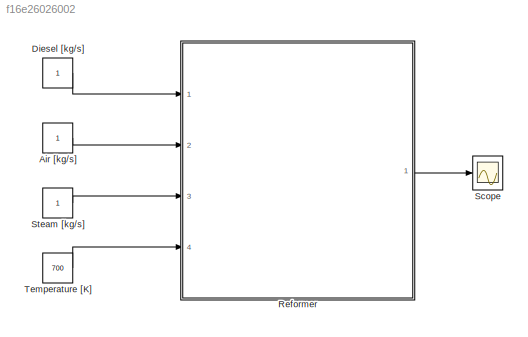
MODEL slx_f16e26026002
KIND model
CONFIG AbsTol = auto
CONFIG EnableMultiTasking = off
CONFIG FixedStep = auto
CONFIG MaxStep = auto
CONFIG MinStep = auto
CONFIG RelTol = 1e-3
CONFIG SampleTimeConstraint = Unconstrained
CONFIG SolverName = VariableStepAuto
CONFIG StartTime = 0.0
CONFIG StopTime = 3
BLOCK [Constant] Air [kg//s]
BLOCK [Constant] Diesel [kg//s]
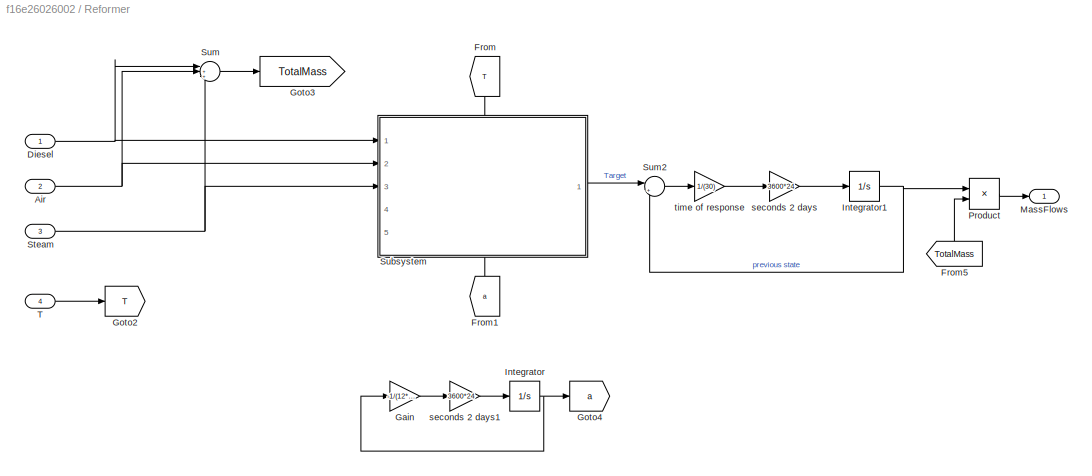
BLOCK [SubSystem] Reformer 
  Ports = [4, 1]
  RequestExecContextInheritance = off
BLOCK [Inport] Reformer /Air
  Port = 2
BLOCK [Inport] Reformer /Diesel
BLOCK [From] Reformer /From
  GotoTag = T
  NameLocation = left
BLOCK [From] Reformer /From1
  GotoTag = a
  NameLocation = right
BLOCK [From] Reformer /From5
  GotoTag = TotalMass
  NameLocation = right
BLOCK [Gain] Reformer /Gain
  Gain = -1/(12*30*24*3600)
BLOCK [Goto] Reformer /Goto2
  GotoTag = T
BLOCK [Goto] Reformer /Goto3
  GotoTag = TotalMass
BLOCK [Goto] Reformer /Goto4
  GotoTag = a
BLOCK [Integrator] Reformer /Integrator
  InitialCondition = 1
  Ports = [1, 1]
BLOCK [Integrator] Reformer /Integrator1
  Ports = [1, 1]
BLOCK [Outport] Reformer /MassFlows
BLOCK [Product] Reformer /Product
  Ports = [2, 1]
BLOCK [Inport] Reformer /Steam
  Port = 3
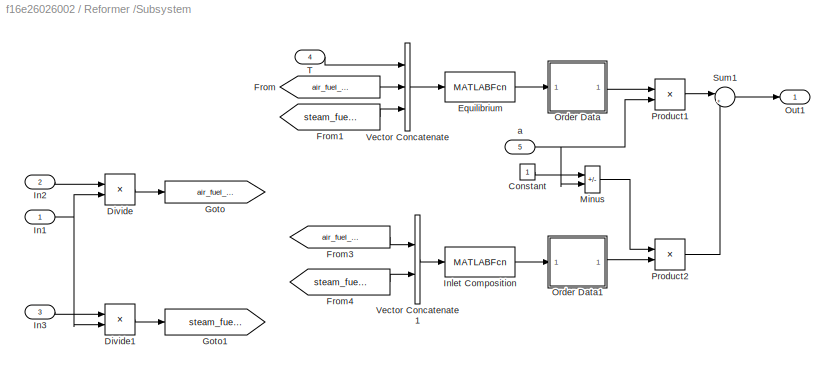
BLOCK [SubSystem] Reformer /Subsystem
  PortSchema = {"entries":[{"content":{"sides":[{"content":{"connectorIds":["In1","In2","In3"]},"type":"ConnectorPlacement.EquallySpacedRectSide","uuid":"0dada652-6957-4c3e-8e48-73ee360a3bab"},{"content":{"connectorIds":["Out1"],"side":"RIGHT"},"type":"ConnectorPlacement.EquallySpacedRectSide","uuid":"81208621-951c-43f9-b655-3502a16ce57a"},{"content":{"connectorIds":["In4"],"side":"TOP"},"type":"ConnectorPlaceme...<+406ch>
  Ports = [5, 1]
  RequestExecContextInheritance = off
BLOCK [Constant] Reformer /Subsystem/Constant
BLOCK [Product] Reformer /Subsystem/Divide
  Inputs = */
  Ports = [2, 1]
BLOCK [Product] Reformer /Subsystem/Divide1
  Inputs = */
  Ports = [2, 1]
BLOCK [MATLABFcn] Reformer /Subsystem/Equilibrium
  MATLABFcn = forward_reformer_net
  Output1D = off
  OutputDimensions = 8
  OutputSignalType = real
  Ports = [1, 1]
BLOCK [From] Reformer /Subsystem/From
  GotoTag = air_fuel_ratio
BLOCK [From] Reformer /Subsystem/From1
  GotoTag = steam_fuel_ratio
BLOCK [From] Reformer /Subsystem/From3
  GotoTag = air_fuel_ratio
BLOCK [From] Reformer /Subsystem/From4
  GotoTag = steam_fuel_ratio
BLOCK [Goto] Reformer /Subsystem/Goto
  GotoTag = air_fuel_ratio
BLOCK [Goto] Reformer /Subsystem/Goto1
  GotoTag = steam_fuel_ratio
BLOCK [Inport] Reformer /Subsystem/In1
BLOCK [Inport] Reformer /Subsystem/In2
  Port = 2
BLOCK [Inport] Reformer /Subsystem/In3
  Port = 3
BLOCK [MATLABFcn] Reformer /Subsystem/Inlet Composition
  MATLABFcn = inlet_reformer_net
  Output1D = off
  OutputDimensions = 6
  OutputSignalType = real
  Ports = [1, 1]
BLOCK [Sum] Reformer /Subsystem/Minus
  IconShape = rectangular
  Inputs = +-
  Ports = [2, 1]
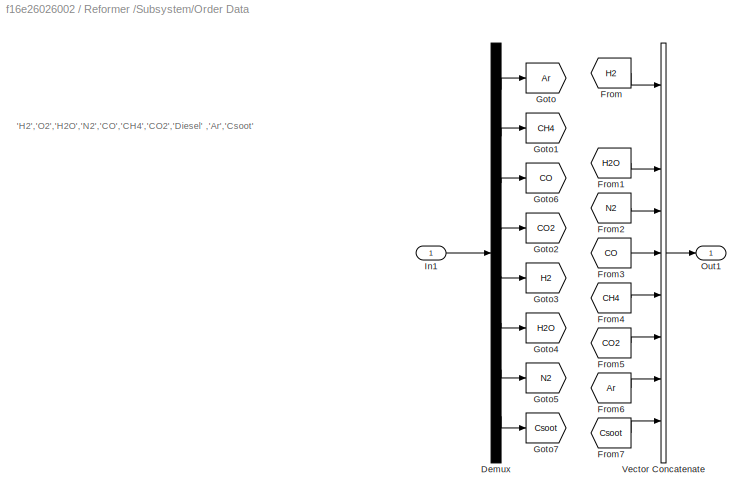
BLOCK [SubSystem] Reformer /Subsystem/Order Data
  Ports = [1, 1]
  RequestExecContextInheritance = off
BLOCK [Demux] Reformer /Subsystem/Order Data/Demux
  Outputs = 8
  Ports = [1, 8]
BLOCK [From] Reformer /Subsystem/Order Data/From
  GotoTag = H2
BLOCK [From] Reformer /Subsystem/Order Data/From1
  GotoTag = H2O
BLOCK [From] Reformer /Subsystem/Order Data/From2
  GotoTag = N2
BLOCK [From] Reformer /Subsystem/Order Data/From3
  GotoTag = CO
BLOCK [From] Reformer /Subsystem/Order Data/From4
  GotoTag = CH4
BLOCK [From] Reformer /Subsystem/Order Data/From5
  GotoTag = CO2
BLOCK [From] Reformer /Subsystem/Order Data/From6
  GotoTag = Ar
BLOCK [From] Reformer /Subsystem/Order Data/From7
  GotoTag = Csoot
BLOCK [Goto] Reformer /Subsystem/Order Data/Goto
  GotoTag = Ar
BLOCK [Goto] Reformer /Subsystem/Order Data/Goto1
  GotoTag = CH4
BLOCK [Goto] Reformer /Subsystem/Order Data/Goto2
  GotoTag = CO2
BLOCK [Goto] Reformer /Subsystem/Order Data/Goto3
  GotoTag = H2
BLOCK [Goto] Reformer /Subsystem/Order Data/Goto4
  GotoTag = H2O
BLOCK [Goto] Reformer /Subsystem/Order Data/Goto5
  GotoTag = N2
BLOCK [Goto] Reformer /Subsystem/Order Data/Goto6
  GotoTag = CO
BLOCK [Goto] Reformer /Subsystem/Order Data/Goto7
  GotoTag = Csoot
BLOCK [Inport] Reformer /Subsystem/Order Data/In1
BLOCK [Outport] Reformer /Subsystem/Order Data/Out1
BLOCK [Concatenate] Reformer /Subsystem/Order Data/Vector Concatenate
  NumInputs = 9
  Ports = [9, 1]
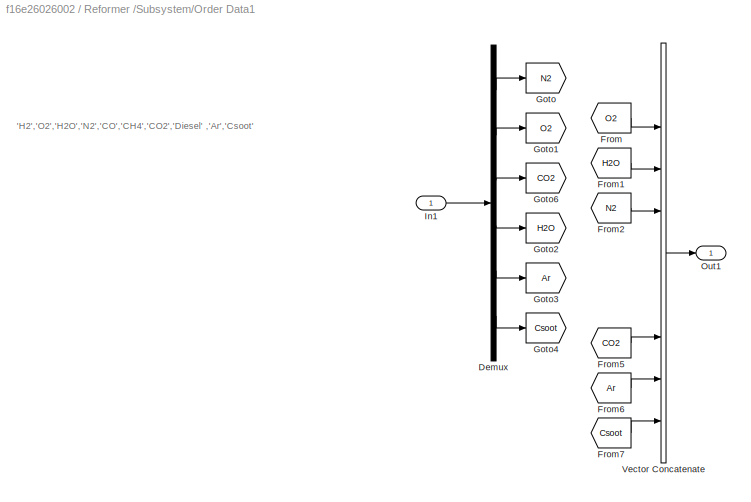
BLOCK [SubSystem] Reformer /Subsystem/Order Data1
  Ports = [1, 1]
  RequestExecContextInheritance = off
BLOCK [Demux] Reformer /Subsystem/Order Data1/Demux
  Outputs = 6
  Ports = [1, 6]
BLOCK [From] Reformer /Subsystem/Order Data1/From
  GotoTag = O2
BLOCK [From] Reformer /Subsystem/Order Data1/From1
  GotoTag = H2O
BLOCK [From] Reformer /Subsystem/Order Data1/From2
  GotoTag = N2
BLOCK [From] Reformer /Subsystem/Order Data1/From5
  GotoTag = CO2
BLOCK [From] Reformer /Subsystem/Order Data1/From6
  GotoTag = Ar
BLOCK [From] Reformer /Subsystem/Order Data1/From7
  GotoTag = Csoot
BLOCK [Goto] Reformer /Subsystem/Order Data1/Goto
  GotoTag = N2
BLOCK [Goto] Reformer /Subsystem/Order Data1/Goto1
  GotoTag = O2
BLOCK [Goto] Reformer /Subsystem/Order Data1/Goto2
  GotoTag = H2O
BLOCK [Goto] Reformer /Subsystem/Order Data1/Goto3
  GotoTag = Ar
BLOCK [Goto] Reformer /Subsystem/Order Data1/Goto4
  GotoTag = Csoot
BLOCK [Goto] Reformer /Subsystem/Order Data1/Goto6
  GotoTag = CO2
BLOCK [Inport] Reformer /Subsystem/Order Data1/In1
BLOCK [Outport] Reformer /Subsystem/Order Data1/Out1
BLOCK [Concatenate] Reformer /Subsystem/Order Data1/Vector Concatenate
  NumInputs = 9
  Ports = [9, 1]
BLOCK [Outport] Reformer /Subsystem/Out1
BLOCK [Product] Reformer /Subsystem/Product1
  Ports = [2, 1]
BLOCK [Product] Reformer /Subsystem/Product2
  Ports = [2, 1]
BLOCK [Sum] Reformer /Subsystem/Sum1
  Inputs = |++
  Ports = [2, 1]
BLOCK [Inport] Reformer /Subsystem/T
  Port = 4
BLOCK [Concatenate] Reformer /Subsystem/Vector Concatenate
  NumInputs = 3
  Ports = [3, 1]
BLOCK [Concatenate] Reformer /Subsystem/Vector Concatenate1
  Ports = [2, 1]
BLOCK [Inport] Reformer /Subsystem/a
  Port = 5
BLOCK [Sum] Reformer /Sum
  Inputs = |+++
  Ports = [3, 1]
BLOCK [Sum] Reformer /Sum2
  Inputs = |+-
  Ports = [2, 1]
BLOCK [Inport] Reformer /T
  Port = 4
BLOCK [Gain] Reformer /seconds 2 days
  Gain = 3600*24
BLOCK [Gain] Reformer /seconds 2 days1
  Gain = 3600*24
BLOCK [Gain] Reformer /time of response
  Gain = 1/(30)
BLOCK [Scope] Scope
  Floating = off
  NumInputPorts = 1
  Ports = [1]
  ScopeSpecificationString = Simulink.scopes.TimeScopeBlockCfg('CurrentConfiguration', extmgr.ConfigurationSet(extmgr.Configuration('Core','General UI',true),extmgr.Configuration('Core','Source UI',true),extmgr.Configuration('Sources','WiredSimulink',true),extmgr.Configuration('Visuals','Time Domain',true,'SerializedDisplays',{struct('MinYLimReal','-0.14638','MaxYLimReal','1.31743','YLabelReal','','MinYLimMag','0.00000','MaxY...<+1673ch>
BLOCK [Constant] Steam [kg//s]
BLOCK [Constant] Temperature [K]
  Value = 700
ANNOTATION Reformer /Subsystem/Order Data: 'H2' , 'O2' , 'H2O' , 'N2' , 'CO' , 'CH4' , 'CO2' , 'Diesel' ,'Ar','Csoot'
ANNOTATION Reformer /Subsystem/Order Data1: 'H2' , 'O2' , 'H2O' , 'N2' , 'CO' , 'CH4' , 'CO2' , 'Diesel' ,'Ar','Csoot'
LINE Air [kg//s]:1 -> Reformer :2
LINE Diesel [kg//s]:1 -> Reformer :1
NET Reformer /Air:1 -> Reformer /Subsystem:2, Reformer /Sum:2
NET Reformer /Diesel:1 -> Reformer /Subsystem:1, Reformer /Sum:1
LINE Reformer /From1:1 -> Reformer /Subsystem:5
LINE Reformer /From5:1 -> Reformer /Product:2
LINE Reformer /From:1 -> Reformer /Subsystem:4
LINE Reformer /Gain:1 -> Reformer /seconds 2 days1:1
NET Reformer /Integrator1:1 -> Reformer /Product:1, Reformer /Sum2:2
NET Reformer /Integrator:1 -> Reformer /Gain:1, Reformer /Goto4:1
LINE Reformer /Product:1 -> Reformer /MassFlows:1
NET Reformer /Steam:1 -> Reformer /Subsystem:3, Reformer /Sum:3
LINE Reformer /Subsystem/Constant:1 -> Reformer /Subsystem/Minus:1
LINE Reformer /Subsystem/Divide1:1 -> Reformer /Subsystem/Goto1:1
LINE Reformer /Subsystem/Divide:1 -> Reformer /Subsystem/Goto:1
LINE Reformer /Subsystem/Equilibrium:1 -> Reformer /Subsystem/Order Data:1
LINE Reformer /Subsystem/From1:1 -> Reformer /Subsystem/Vector Concatenate:3
LINE Reformer /Subsystem/From3:1 -> Reformer /Subsystem/Vector Concatenate1:1
LINE Reformer /Subsystem/From4:1 -> Reformer /Subsystem/Vector Concatenate1:2
LINE Reformer /Subsystem/From:1 -> Reformer /Subsystem/Vector Concatenate:2
NET Reformer /Subsystem/In1:1 -> Reformer /Subsystem/Divide1:2, Reformer /Subsystem/Divide:2
LINE Reformer /Subsystem/In2:1 -> Reformer /Subsystem/Divide:1
LINE Reformer /Subsystem/In3:1 -> Reformer /Subsystem/Divide1:1
LINE Reformer /Subsystem/Inlet Composition:1 -> Reformer /Subsystem/Order Data1:1
LINE Reformer /Subsystem/Minus:1 -> Reformer /Subsystem/Product2:1
LINE Reformer /Subsystem/Order Data/Demux:1 -> Reformer /Subsystem/Order Data/Goto:1
LINE Reformer /Subsystem/Order Data/Demux:2 -> Reformer /Subsystem/Order Data/Goto1:1
LINE Reformer /Subsystem/Order Data/Demux:3 -> Reformer /Subsystem/Order Data/Goto6:1
LINE Reformer /Subsystem/Order Data/Demux:4 -> Reformer /Subsystem/Order Data/Goto2:1
LINE Reformer /Subsystem/Order Data/Demux:5 -> Reformer /Subsystem/Order Data/Goto3:1
LINE Reformer /Subsystem/Order Data/Demux:6 -> Reformer /Subsystem/Order Data/Goto4:1
LINE Reformer /Subsystem/Order Data/Demux:7 -> Reformer /Subsystem/Order Data/Goto5:1
LINE Reformer /Subsystem/Order Data/Demux:8 -> Reformer /Subsystem/Order Data/Goto7:1
LINE Reformer /Subsystem/Order Data/From1:1 -> Reformer /Subsystem/Order Data/Vector Concatenate:3
LINE Reformer /Subsystem/Order Data/From2:1 -> Reformer /Subsystem/Order Data/Vector Concatenate:4
LINE Reformer /Subsystem/Order Data/From3:1 -> Reformer /Subsystem/Order Data/Vector Concatenate:5
LINE Reformer /Subsystem/Order Data/From4:1 -> Reformer /Subsystem/Order Data/Vector Concatenate:6
LINE Reformer /Subsystem/Order Data/From5:1 -> Reformer /Subsystem/Order Data/Vector Concatenate:7
LINE Reformer /Subsystem/Order Data/From6:1 -> Reformer /Subsystem/Order Data/Vector Concatenate:8
LINE Reformer /Subsystem/Order Data/From7:1 -> Reformer /Subsystem/Order Data/Vector Concatenate:9
LINE Reformer /Subsystem/Order Data/From:1 -> Reformer /Subsystem/Order Data/Vector Concatenate:1
LINE Reformer /Subsystem/Order Data/In1:1 -> Reformer /Subsystem/Order Data/Demux:1
LINE Reformer /Subsystem/Order Data/Vector Concatenate:1 -> Reformer /Subsystem/Order Data/Out1:1
LINE Reformer /Subsystem/Order Data1/Demux:1 -> Reformer /Subsystem/Order Data1/Goto:1
LINE Reformer /Subsystem/Order Data1/Demux:2 -> Reformer /Subsystem/Order Data1/Goto1:1
LINE Reformer /Subsystem/Order Data1/Demux:3 -> Reformer /Subsystem/Order Data1/Goto6:1
LINE Reformer /Subsystem/Order Data1/Demux:4 -> Reformer /Subsystem/Order Data1/Goto2:1
LINE Reformer /Subsystem/Order Data1/Demux:5 -> Reformer /Subsystem/Order Data1/Goto3:1
LINE Reformer /Subsystem/Order Data1/Demux:6 -> Reformer /Subsystem/Order Data1/Goto4:1
LINE Reformer /Subsystem/Order Data1/From1:1 -> Reformer /Subsystem/Order Data1/Vector Concatenate:3
LINE Reformer /Subsystem/Order Data1/From2:1 -> Reformer /Subsystem/Order Data1/Vector Concatenate:4
LINE Reformer /Subsystem/Order Data1/From5:1 -> Reformer /Subsystem/Order Data1/Vector Concatenate:7
LINE Reformer /Subsystem/Order Data1/From6:1 -> Reformer /Subsystem/Order Data1/Vector Concatenate:8
LINE Reformer /Subsystem/Order Data1/From7:1 -> Reformer /Subsystem/Order Data1/Vector Concatenate:9
LINE Reformer /Subsystem/Order Data1/From:1 -> Reformer /Subsystem/Order Data1/Vector Concatenate:2
LINE Reformer /Subsystem/Order Data1/In1:1 -> Reformer /Subsystem/Order Data1/Demux:1
LINE Reformer /Subsystem/Order Data1/Vector Concatenate:1 -> Reformer /Subsystem/Order Data1/Out1:1
LINE Reformer /Subsystem/Order Data1:1 -> Reformer /Subsystem/Product2:2
LINE Reformer /Subsystem/Order Data:1 -> Reformer /Subsystem/Product1:1
LINE Reformer /Subsystem/Product1:1 -> Reformer /Subsystem/Sum1:1
LINE Reformer /Subsystem/Product2:1 -> Reformer /Subsystem/Sum1:2
LINE Reformer /Subsystem/Sum1:1 -> Reformer /Subsystem/Out1:1
LINE Reformer /Subsystem/T:1 -> Reformer /Subsystem/Vector Concatenate:1
LINE Reformer /Subsystem/Vector Concatenate1:1 -> Reformer /Subsystem/Inlet Composition:1
LINE Reformer /Subsystem/Vector Concatenate:1 -> Reformer /Subsystem/Equilibrium:1
NET Reformer /Subsystem/a:1 -> Reformer /Subsystem/Minus:2, Reformer /Subsystem/Product1:2
LINE Reformer /Subsystem:1 -> Reformer /Sum2:1
LINE Reformer /Sum2:1 -> Reformer /time of response:1
LINE Reformer /Sum:1 -> Reformer /Goto3:1
LINE Reformer /T:1 -> Reformer /Goto2:1
LINE Reformer /seconds 2 days1:1 -> Reformer /Integrator:1
LINE Reformer /seconds 2 days:1 -> Reformer /Integrator1:1
LINE Reformer /time of response:1 -> Reformer /seconds 2 days:1
LINE Reformer :1 -> Scope:1
LINE Steam [kg//s]:1 -> Reformer :3
LINE Temperature [K]:1 -> Reformer :4
note: NET lines group one-source signal fan-out (src -> all destinations, sorted); 1:1 wires keep LINE
